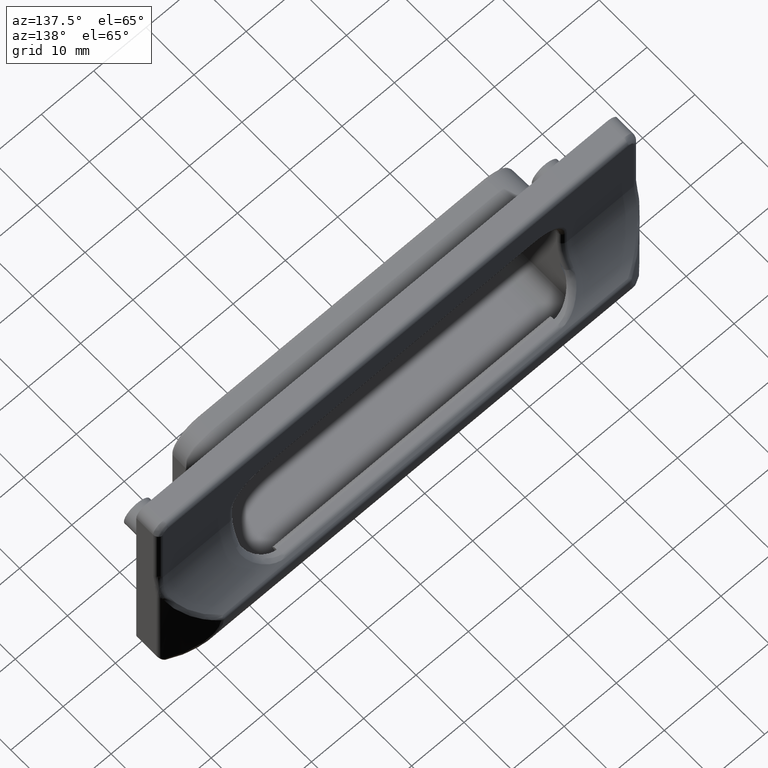
[diagram: clean part render]
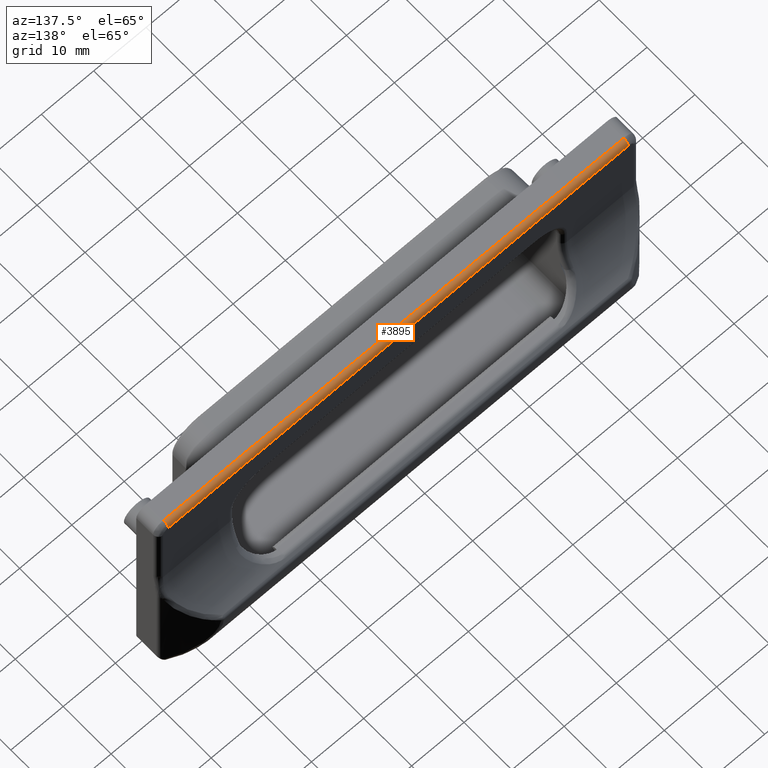
[diagram: same view with one face highlighted and labeled with its STEP entity id]
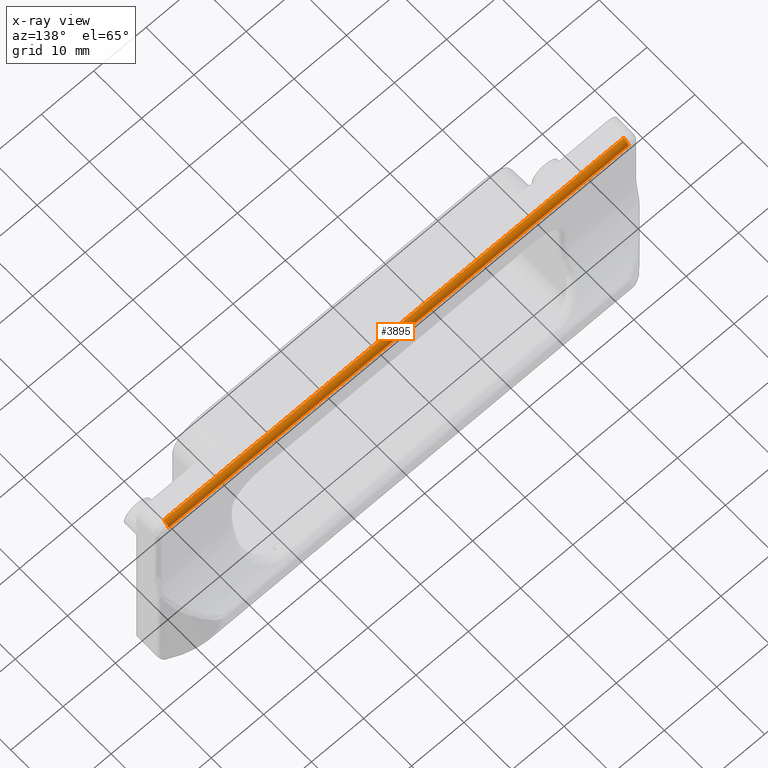
[diagram: x-ray of the same camera — body ghosted, the highlighted face saturated]
A machine part, auxiliary view. The second image highlights one B-rep face of the part: STEP entity #3895.
The next image is the same camera in x-ray: the body ghosted, the highlighted face saturated — about 0% of this face is hidden behind the body in this view.
In plain terms, the highlighted cylindrical surface (edge-blend (fillet) strip) has radius 1 mm, axis along (1, 0, 0).
Its self-contained STEP definition (entity closure, byte-faithful):
#140=LINE('',#7374,#421);
#152=LINE('',#7903,#433);
#421=VECTOR('',#4834,88.);
#433=VECTOR('',#4924,88.);
#747=CYLINDRICAL_SURFACE('',#4216,1.);
#913=FACE_OUTER_BOUND('',#1161,.T.);
#1161=EDGE_LOOP('',(#3067,#3068,#3069,#3070));
#1401=CIRCLE('',#4214,1.);
#1403=CIRCLE('',#4217,1.);
#1757=VERTEX_POINT('',#7371);
#1758=VERTEX_POINT('',#7373);
#1781=VERTEX_POINT('',#7897);
#1782=VERTEX_POINT('',#7901);
#2203=EDGE_CURVE('',#1758,#1757,#140,.T.);
#2249=EDGE_CURVE('',#1781,#1757,#1401,.T.);
#2251=EDGE_CURVE('',#1782,#1758,#1403,.T.);
#2252=EDGE_CURVE('',#1781,#1782,#152,.T.);
#3067=ORIENTED_EDGE('',*,*,#2251,.T.);
#3068=ORIENTED_EDGE('',*,*,#2203,.T.);
#3069=ORIENTED_EDGE('',*,*,#2249,.F.);
#3070=ORIENTED_EDGE('',*,*,#2252,.T.);
#3895=ADVANCED_FACE('',(#913),#747,.T.);
#4214=AXIS2_PLACEMENT_3D('',#7898,#4916,#4917);
#4216=AXIS2_PLACEMENT_3D('',#7900,#4920,#4921);
#4217=AXIS2_PLACEMENT_3D('',#7902,#4922,#4923);
#4834=DIRECTION('',(-1.,0.,0.));
#4916=DIRECTION('center_axis',(-1.,0.,0.));
#4917=DIRECTION('ref_axis',(0.,0.,1.));
#4920=DIRECTION('center_axis',(1.,0.,0.));
#4921=DIRECTION('ref_axis',(0.,0.707106781186549,0.707106781186546));
#4922=DIRECTION('center_axis',(-1.,0.,8.88178419700124E-15));
#4923=DIRECTION('ref_axis',(8.88178419700124E-15,0.,1.));
#4924=DIRECTION('',(1.,0.,0.));
#7371=CARTESIAN_POINT('',(-44.,4.5,20.5));
#7373=CARTESIAN_POINT('',(44.,4.5,20.5));
#7374=CARTESIAN_POINT('',(4.44089209850063E-15,4.5,20.5));
#7897=CARTESIAN_POINT('',(-44.,3.5,21.5));
#7898=CARTESIAN_POINT('Origin',(-44.,3.5,20.5));
#7900=CARTESIAN_POINT('Origin',(4.44089209850063E-15,3.5,20.5));
#7901=CARTESIAN_POINT('',(44.,3.5,21.5));
#7902=CARTESIAN_POINT('Origin',(44.,3.5,20.5));
#7903=CARTESIAN_POINT('',(4.44089209850063E-15,3.5,21.5));